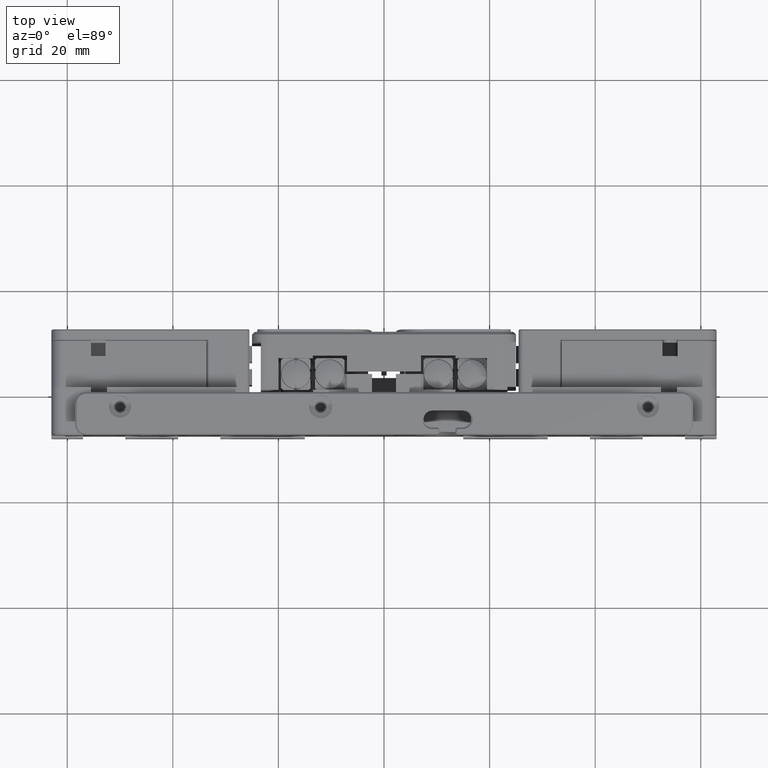
[diagram: clean part render]
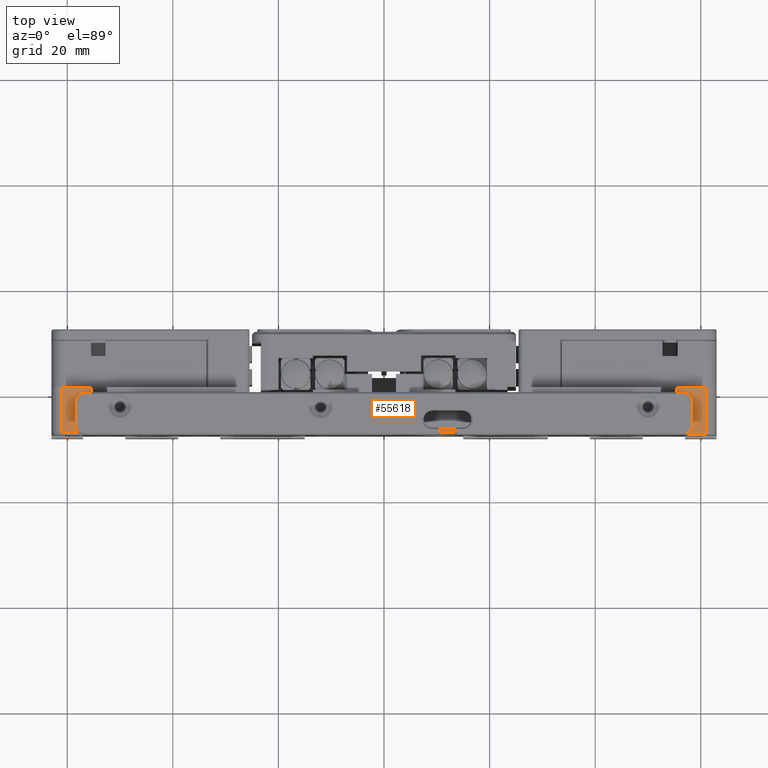
[diagram: same view with one face highlighted and labeled with its STEP entity id]
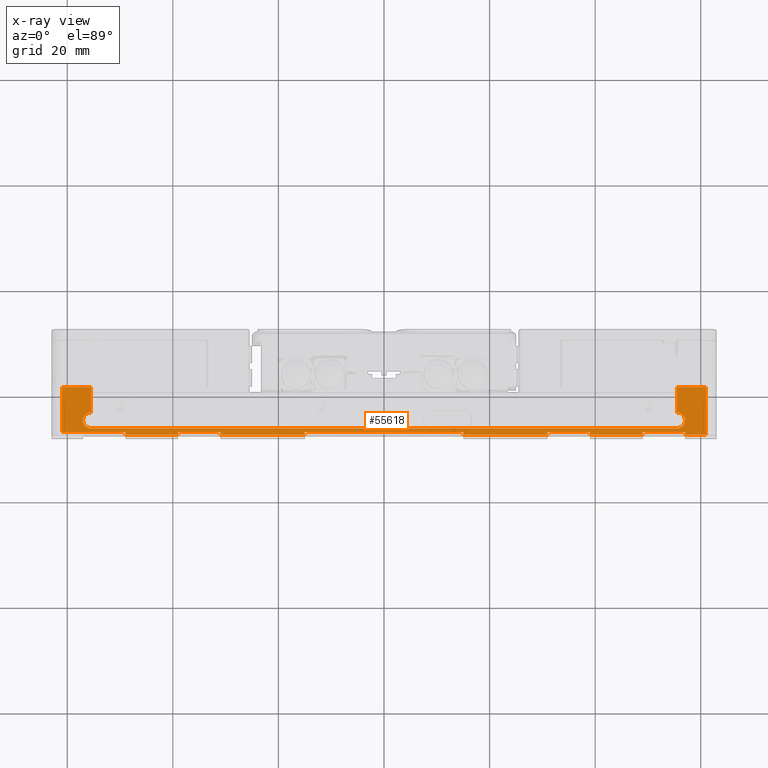
[diagram: x-ray of the same camera — body ghosted, the highlighted face saturated]
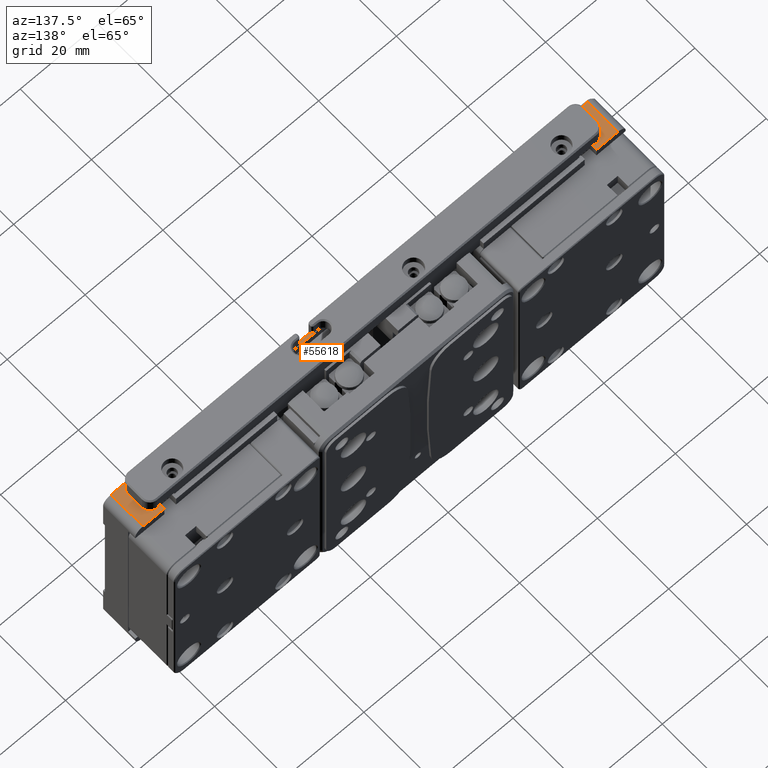
[diagram: same view with one face highlighted and labeled with its STEP entity id]
A machine part, top view. The second image highlights one B-rep face of the part: STEP entity #55618.
The next image is the same camera in x-ray: the body ghosted, the highlighted face saturated — about 0% of this face is hidden behind the body in this view.
A second angle (auxiliary view) of the same face is appended — the face is thin or edge-on in the first view.
In plain terms, the highlighted planar face has unit normal (0, 0, 1).
Its self-contained STEP definition (entity closure, byte-faithful):
#97 = DIRECTION ( 'NONE',  ( -1.000000000000000000, -0.000000000000000000, 0.000000000000000000 ) ) ;
#135 = VECTOR ( 'NONE', #23021, 1000.000000000000000 ) ;
#676 = EDGE_CURVE ( 'NONE', #7983, #10965, #2524, .T. ) ;
#936 = CARTESIAN_POINT ( 'NONE',  ( 0.000000000000000000, 1.000000000000000000, 25.00000000000000000 ) ) ;
#1038 = ORIENTED_EDGE ( 'NONE', *, *, #2643, .T. ) ;
#1106 = VERTEX_POINT ( 'NONE', #53484 ) ;
#1353 = VECTOR ( 'NONE', #18919, 1000.000000000000000 ) ;
#1513 = ORIENTED_EDGE ( 'NONE', *, *, #2705, .F. ) ;
#1542 = CARTESIAN_POINT ( 'NONE',  ( -49.00000000000000711, -8.000000000000000000, 25.00000000000000355 ) ) ;
#1629 = CARTESIAN_POINT ( 'NONE',  ( 15.00000000000000000, -7.500000000000000000, 25.00000000000000355 ) ) ;
#1963 = VERTEX_POINT ( 'NONE', #1629 ) ;
#2507 = LINE ( 'NONE', #37078, #50108 ) ;
#2524 = LINE ( 'NONE', #3373, #33540 ) ;
#2527 = DIRECTION ( 'NONE',  ( -0.000000000000000000, 1.000000000000000000, 0.000000000000000000 ) ) ;
#2608 = LINE ( 'NONE', #6305, #135 ) ;
#2643 = EDGE_CURVE ( 'NONE', #43916, #24826, #2608, .T. ) ;
#2680 = ORIENTED_EDGE ( 'NONE', *, *, #6447, .T. ) ;
#2705 = EDGE_CURVE ( 'NONE', #16220, #47283, #37764, .T. ) ;
#2929 = LINE ( 'NONE', #28745, #15010 ) ;
#3373 = CARTESIAN_POINT ( 'NONE',  ( 0.000000000000000000, -8.000000000000000000, 25.00000000000000000 ) ) ;
#3431 = EDGE_CURVE ( 'NONE', #41920, #39021, #4377, .T. ) ;
#3473 = CARTESIAN_POINT ( 'NONE',  ( 0.000000000000000000, -8.000000000000000000, 25.00000000000000000 ) ) ;
#3650 = LINE ( 'NONE', #24609, #49707 ) ;
#4323 = CARTESIAN_POINT ( 'NONE',  ( -55.50000000000000000, -5.299999999999999822, 25.00000000000000000 ) ) ;
#4377 = LINE ( 'NONE', #8056, #30977 ) ;
#5213 = CARTESIAN_POINT ( 'NONE',  ( 49.00000000000000711, -8.000000000000000000, 25.00000000000000355 ) ) ;
#5227 = VERTEX_POINT ( 'NONE', #17012 ) ;
#5346 = VERTEX_POINT ( 'NONE', #14139 ) ;
#5906 = CARTESIAN_POINT ( 'NONE',  ( 61.00000000000000000, -8.000000000000000000, 25.00000000000000000 ) ) ;
#5928 = LINE ( 'NONE', #30585, #15062 ) ;
#5948 = DIRECTION ( 'NONE',  ( -1.000000000000000000, -0.000000000000000000, 0.000000000000000000 ) ) ;
#6205 = DIRECTION ( 'NONE',  ( -0.000000000000000000, 1.000000000000000000, 0.000000000000000000 ) ) ;
#6305 = CARTESIAN_POINT ( 'NONE',  ( 55.50000000000000000, 0.000000000000000000, 25.00000000000000000 ) ) ;
#6447 = EDGE_CURVE ( 'NONE', #5346, #47283, #45885, .T. ) ;
#7221 = DIRECTION ( 'NONE',  ( -1.000000000000000000, -0.000000000000000000, -0.000000000000000000 ) ) ;
#7370 = CARTESIAN_POINT ( 'NONE',  ( 57.00000000000000000, -7.500000000000000000, 25.00000000000000355 ) ) ;
#7496 = CARTESIAN_POINT ( 'NONE',  ( 0.000000000000000000, -7.500000000000000000, 25.00000000000000000 ) ) ;
#7983 = VERTEX_POINT ( 'NONE', #12316 ) ;
#8056 = CARTESIAN_POINT ( 'NONE',  ( 0.000000000000000000, -8.000000000000000000, 25.00000000000000000 ) ) ;
#8243 = CARTESIAN_POINT ( 'NONE',  ( 61.00000000000000000, 0.000000000000000000, 25.00000000000000000 ) ) ;
#8421 = VERTEX_POINT ( 'NONE', #43157 ) ;
#8635 = CARTESIAN_POINT ( 'NONE',  ( -61.00000000153499968, 1.000000000000000444, 25.00000000000000000 ) ) ;
#9011 = CARTESIAN_POINT ( 'NONE',  ( -55.50000000000000000, -6.800000000000000711, 25.00000000000000000 ) ) ;
#9286 = VERTEX_POINT ( 'NONE', #13635 ) ;
#9737 = EDGE_CURVE ( 'NONE', #36695, #43916, #35402, .T. ) ;
#10353 = ORIENTED_EDGE ( 'NONE', *, *, #12521, .T. ) ;
#10965 = VERTEX_POINT ( 'NONE', #5213 ) ;
#11293 = CARTESIAN_POINT ( 'NONE',  ( 31.00000000000000000, 0.000000000000000000, 25.00000000000000000 ) ) ;
#11676 = LINE ( 'NONE', #3473, #46667 ) ;
#11715 = CARTESIAN_POINT ( 'NONE',  ( 61.00000000000000000, 1.000000000000000444, 25.00000000000000000 ) ) ;
#11932 = ORIENTED_EDGE ( 'NONE', *, *, #27238, .T. ) ;
#11959 = ORIENTED_EDGE ( 'NONE', *, *, #33734, .T. ) ;
#12067 = CARTESIAN_POINT ( 'NONE',  ( 55.50000000000000000, 1.000000000000000222, 25.00000000000000355 ) ) ;
#12084 = CARTESIAN_POINT ( 'NONE',  ( -31.00000000000000000, -7.500000000000000000, 25.00000000000000355 ) ) ;
#12227 = VECTOR ( 'NONE', #14562, 1000.000000000000000 ) ;
#12231 = VECTOR ( 'NONE', #40571, 1000.000000000000000 ) ;
#12316 = CARTESIAN_POINT ( 'NONE',  ( 39.00000000000000000, -8.000000000000000000, 25.00000000000000355 ) ) ;
#12318 = LINE ( 'NONE', #13902, #35845 ) ;
#12521 = EDGE_CURVE ( 'NONE', #28138, #35422, #36543, .T. ) ;
#12582 = DIRECTION ( 'NONE',  ( 1.000000000000000000, 0.000000000000000000, -0.000000000000000000 ) ) ;
#12768 = CARTESIAN_POINT ( 'NONE',  ( 55.50000000000000000, -5.299999999999999822, 25.00000000000000000 ) ) ;
#13363 = CARTESIAN_POINT ( 'NONE',  ( 57.00000000000000000, 0.000000000000000000, 25.00000000000000000 ) ) ;
#13598 = VECTOR ( 'NONE', #7221, 1000.000000000000000 ) ;
#13635 = CARTESIAN_POINT ( 'NONE',  ( -39.00000000000000000, -7.500000000000000000, 25.00000000000000355 ) ) ;
#13672 = ORIENTED_EDGE ( 'NONE', *, *, #29730, .T. ) ;
#13902 = CARTESIAN_POINT ( 'NONE',  ( -61.00000000306999937, 0.000000000000000000, 25.00000000000000000 ) ) ;
#14139 = CARTESIAN_POINT ( 'NONE',  ( 31.00000000000000000, -8.000000000000000000, 25.00000000000000355 ) ) ;
#14562 = DIRECTION ( 'NONE',  ( 1.000000000000000000, 0.000000000000000000, -0.000000000000000000 ) ) ;
#15010 = VECTOR ( 'NONE', #50281, 1000.000000000000000 ) ;
#15062 = VECTOR ( 'NONE', #17829, 1000.000000000000000 ) ;
#15315 = EDGE_CURVE ( 'NONE', #52450, #5227, #2929, .T. ) ;
#15513 = CARTESIAN_POINT ( 'NONE',  ( -39.00000000000000000, 0.000000000000000000, 25.00000000000000000 ) ) ;
#16220 = VERTEX_POINT ( 'NONE', #32768 ) ;
#16658 = VECTOR ( 'NONE', #29046, 1000.000000000000000 ) ;
#16943 = AXIS2_PLACEMENT_3D ( 'NONE', #30790, #34479, #29956 ) ;
#17012 = CARTESIAN_POINT ( 'NONE',  ( -39.00000000000000000, -8.000000000000000000, 25.00000000000000355 ) ) ;
#17070 = DIRECTION ( 'NONE',  ( -0.000000000000000000, 1.000000000000000000, 0.000000000000000000 ) ) ;
#17340 = ORIENTED_EDGE ( 'NONE', *, *, #44716, .T. ) ;
#17649 = EDGE_CURVE ( 'NONE', #39021, #8421, #50045, .T. ) ;
#17829 = DIRECTION ( 'NONE',  ( 0.000000000000000000, -1.000000000000000000, -0.000000000000000000 ) ) ;
#18097 = CARTESIAN_POINT ( 'NONE',  ( 0.000000000000000000, -7.500000000000000000, 25.00000000000000000 ) ) ;
#18520 = VERTEX_POINT ( 'NONE', #7370 ) ;
#18919 = DIRECTION ( 'NONE',  ( -1.000000000000000000, -0.000000000000000000, -0.000000000000000000 ) ) ;
#19933 = CARTESIAN_POINT ( 'NONE',  ( -55.50000000000000000, -3.800000000000000266, 25.00000000000000000 ) ) ;
#20017 = CARTESIAN_POINT ( 'NONE',  ( 0.000000000000000000, -7.500000000000000000, 25.00000000000000000 ) ) ;
#20064 = VECTOR ( 'NONE', #46230, 1000.000000000000000 ) ;
#20159 = DIRECTION ( 'NONE',  ( 1.000000000000000000, 0.000000000000000000, 0.000000000000000000 ) ) ;
#20169 = DIRECTION ( 'NONE',  ( 1.000000000000000000, 0.000000000000000000, -0.000000000000000000 ) ) ;
#20286 = VECTOR ( 'NONE', #31144, 1000.000000000000000 ) ;
#20463 = CARTESIAN_POINT ( 'NONE',  ( 57.00000000000000000, -8.000000000000000000, 25.00000000000000355 ) ) ;
#20604 = ORIENTED_EDGE ( 'NONE', *, *, #43362, .T. ) ;
#20716 = EDGE_CURVE ( 'NONE', #35422, #20982, #52971, .T. ) ;
#20802 = LINE ( 'NONE', #7496, #13598 ) ;
#20982 = VERTEX_POINT ( 'NONE', #35813 ) ;
#21095 = VECTOR ( 'NONE', #45977, 1000.000000000000000 ) ;
#21596 = VERTEX_POINT ( 'NONE', #12084 ) ;
#21722 = PLANE ( 'NONE',  #16943 ) ;
#22112 = LINE ( 'NONE', #8243, #22649 ) ;
#22649 = VECTOR ( 'NONE', #30061, 1000.000000000000000 ) ;
#23021 = DIRECTION ( 'NONE',  ( 0.000000000000000000, -1.000000000000000000, -0.000000000000000000 ) ) ;
#23083 = LINE ( 'NONE', #26779, #12227 ) ;
#23194 = ORIENTED_EDGE ( 'NONE', *, *, #30874, .F. ) ;
#23868 = LINE ( 'NONE', #32650, #21095 ) ;
#24609 = CARTESIAN_POINT ( 'NONE',  ( 0.000000000000000000, -7.500000000004000356, 25.00000000000000000 ) ) ;
#24613 = VECTOR ( 'NONE', #97, 1000.000000000000000 ) ;
#24826 = VERTEX_POINT ( 'NONE', #29777 ) ;
#26465 = ORIENTED_EDGE ( 'NONE', *, *, #3431, .T. ) ;
#26779 = CARTESIAN_POINT ( 'NONE',  ( 0.000000000000000000, -8.000000000000000000, 25.00000000000000000 ) ) ;
#26850 = VECTOR ( 'NONE', #17070, 1000.000000000000000 ) ;
#27238 = EDGE_CURVE ( 'NONE', #24826, #48652, #30413, .T. ) ;
#27328 = ORIENTED_EDGE ( 'NONE', *, *, #20716, .T. ) ;
#28138 = VERTEX_POINT ( 'NONE', #9011 ) ;
#28546 = VECTOR ( 'NONE', #55132, 1000.000000000000000 ) ;
#28586 = VECTOR ( 'NONE', #37592, 1000.000000000000000 ) ;
#28614 = EDGE_CURVE ( 'NONE', #21596, #41920, #23868, .T. ) ;
#28745 = CARTESIAN_POINT ( 'NONE',  ( 0.000000000000000000, -8.000000000000000000, 25.00000000000000000 ) ) ;
#29046 = DIRECTION ( 'NONE',  ( 0.000000000000000000, -1.000000000000000000, -0.000000000000000000 ) ) ;
#29304 = ORIENTED_EDGE ( 'NONE', *, *, #46540, .T. ) ;
#29730 = EDGE_CURVE ( 'NONE', #18520, #53772, #37567, .T. ) ;
#29742 = ORIENTED_EDGE ( 'NONE', *, *, #45277, .F. ) ;
#29777 = CARTESIAN_POINT ( 'NONE',  ( 55.50000000000000000, -3.799999999999999822, 25.00000000000000000 ) ) ;
#29956 = DIRECTION ( 'NONE',  ( 1.000000000000000000, 0.000000000000000000, -0.000000000000000000 ) ) ;
#30061 = DIRECTION ( 'NONE',  ( -0.000000000000000000, 1.000000000000000000, 0.000000000000000000 ) ) ;
#30413 = CIRCLE ( 'NONE', #37677, 1.500000000000001332 ) ;
#30585 = CARTESIAN_POINT ( 'NONE',  ( -49.00000000000000000, 0.000000000000000000, 25.00000000000000000 ) ) ;
#30790 = CARTESIAN_POINT ( 'NONE',  ( 0.000000000000000000, 0.000000000000000000, 25.00000000000000000 ) ) ;
#30843 = CARTESIAN_POINT ( 'NONE',  ( -55.50000000000000000, 0.000000000000000000, 25.00000000000000000 ) ) ;
#30874 = EDGE_CURVE ( 'NONE', #1963, #8421, #45535, .T. ) ;
#30977 = VECTOR ( 'NONE', #12582, 1000.000000000000000 ) ;
#31144 = DIRECTION ( 'NONE',  ( 0.000000000000000000, -1.000000000000000000, -0.000000000000000000 ) ) ;
#31480 = LINE ( 'NONE', #48768, #12231 ) ;
#31509 = ORIENTED_EDGE ( 'NONE', *, *, #39618, .T. ) ;
#31945 = LINE ( 'NONE', #50593, #28546 ) ;
#32531 = LINE ( 'NONE', #15513, #50370 ) ;
#32621 = CARTESIAN_POINT ( 'NONE',  ( 49.00000000000000711, -7.500000000000000000, 25.00000000000000355 ) ) ;
#32650 = CARTESIAN_POINT ( 'NONE',  ( -31.00000000000000000, 0.000000000000000000, 25.00000000000000000 ) ) ;
#32768 = CARTESIAN_POINT ( 'NONE',  ( 39.00000000000000000, -7.500000000000000000, 25.00000000000000355 ) ) ;
#33243 = EDGE_LOOP ( 'NONE', ( #11959, #20604, #34395, #55714, #34055, #31509, #29742, #49100, #26465, #38228, #23194, #54352, #55688, #2680, #1513, #40701, #35890, #52431, #37716, #13672, #40526, #17340, #55920, #1038, #11932, #36115, #10353, #27328, #29304 ) ) ;
#33540 = VECTOR ( 'NONE', #37095, 1000.000000000000000 ) ;
#33734 = EDGE_CURVE ( 'NONE', #56018, #1106, #12318, .T. ) ;
#34055 = ORIENTED_EDGE ( 'NONE', *, *, #15315, .T. ) ;
#34395 = ORIENTED_EDGE ( 'NONE', *, *, #50958, .F. ) ;
#34469 = CARTESIAN_POINT ( 'NONE',  ( -56.99999999999999289, -7.500000000002000178, 25.00000000000200373 ) ) ;
#34479 = DIRECTION ( 'NONE',  ( 0.000000000000000000, 0.000000000000000000, 1.000000000000000000 ) ) ;
#34586 = CARTESIAN_POINT ( 'NONE',  ( -49.00000000000000711, -7.500000000000000000, 25.00000000000000355 ) ) ;
#34607 = DIRECTION ( 'NONE',  ( -0.000000000000000000, -0.000000000000000000, -1.000000000000000000 ) ) ;
#34804 = CARTESIAN_POINT ( 'NONE',  ( 0.000000000000000000, -7.500000000000000000, 25.00000000000000000 ) ) ;
#34984 = LINE ( 'NONE', #936, #24613 ) ;
#35402 = LINE ( 'NONE', #48145, #41246 ) ;
#35422 = VERTEX_POINT ( 'NONE', #19933 ) ;
#35813 = CARTESIAN_POINT ( 'NONE',  ( -55.50000000000000000, 1.000000000000000000, 25.00000000000000355 ) ) ;
#35845 = VECTOR ( 'NONE', #43971, 1000.000000000000000 ) ;
#35890 = ORIENTED_EDGE ( 'NONE', *, *, #676, .T. ) ;
#36115 = ORIENTED_EDGE ( 'NONE', *, *, #38093, .T. ) ;
#36543 = CIRCLE ( 'NONE', #41979, 1.500000000000001332 ) ;
#36695 = VERTEX_POINT ( 'NONE', #11715 ) ;
#36842 = EDGE_CURVE ( 'NONE', #16220, #7983, #40617, .T. ) ;
#37078 = CARTESIAN_POINT ( 'NONE',  ( 0.000000000000000000, -7.500000000000000000, 25.00000000000000000 ) ) ;
#37095 = DIRECTION ( 'NONE',  ( 1.000000000000000000, 0.000000000000000000, -0.000000000000000000 ) ) ;
#37472 = DIRECTION ( 'NONE',  ( -0.000000000000000000, -0.000000000000000000, -1.000000000000000000 ) ) ;
#37567 = LINE ( 'NONE', #13363, #16658 ) ;
#37592 = DIRECTION ( 'NONE',  ( -0.000000000000000000, 1.000000000000000000, 0.000000000000000000 ) ) ;
#37677 = AXIS2_PLACEMENT_3D ( 'NONE', #12768, #37472, #20159 ) ;
#37716 = ORIENTED_EDGE ( 'NONE', *, *, #39445, .F. ) ;
#37764 = LINE ( 'NONE', #34804, #20064 ) ;
#38093 = EDGE_CURVE ( 'NONE', #48652, #28138, #31480, .T. ) ;
#38228 = ORIENTED_EDGE ( 'NONE', *, *, #17649, .T. ) ;
#38540 = EDGE_CURVE ( 'NONE', #1963, #41758, #31945, .T. ) ;
#38621 = LINE ( 'NONE', #55909, #26850 ) ;
#39021 = VERTEX_POINT ( 'NONE', #51069 ) ;
#39445 = EDGE_CURVE ( 'NONE', #18520, #41886, #40525, .T. ) ;
#39476 = EDGE_CURVE ( 'NONE', #44692, #52450, #5928, .T. ) ;
#39618 = EDGE_CURVE ( 'NONE', #5227, #9286, #32531, .T. ) ;
#40159 = VECTOR ( 'NONE', #2527, 1000.000000000000000 ) ;
#40347 = VERTEX_POINT ( 'NONE', #5906 ) ;
#40525 = LINE ( 'NONE', #18097, #54903 ) ;
#40526 = ORIENTED_EDGE ( 'NONE', *, *, #53364, .T. ) ;
#40571 = DIRECTION ( 'NONE',  ( -1.000000000000000000, -0.000000000000000000, 0.000000000000000000 ) ) ;
#40617 = LINE ( 'NONE', #49371, #20286 ) ;
#40701 = ORIENTED_EDGE ( 'NONE', *, *, #36842, .T. ) ;
#41246 = VECTOR ( 'NONE', #5948, 1000.000000000000000 ) ;
#41565 = CARTESIAN_POINT ( 'NONE',  ( -15.00000000000000000, 0.000000000000000000, 25.00000000000000000 ) ) ;
#41758 = VERTEX_POINT ( 'NONE', #47398 ) ;
#41886 = VERTEX_POINT ( 'NONE', #32621 ) ;
#41920 = VERTEX_POINT ( 'NONE', #46209 ) ;
#41979 = AXIS2_PLACEMENT_3D ( 'NONE', #4323, #34607, #51896 ) ;
#43157 = CARTESIAN_POINT ( 'NONE',  ( -15.00000000000000000, -7.500000000000000000, 25.00000000000000355 ) ) ;
#43348 = DIRECTION ( 'NONE',  ( -0.000000000000000000, 1.000000000000000000, 0.000000000000000000 ) ) ;
#43362 = EDGE_CURVE ( 'NONE', #1106, #54544, #3650, .T. ) ;
#43916 = VERTEX_POINT ( 'NONE', #12067 ) ;
#43971 = DIRECTION ( 'NONE',  ( 0.000000000000000000, -1.000000000000000000, -0.000000000000000000 ) ) ;
#44692 = VERTEX_POINT ( 'NONE', #34586 ) ;
#44716 = EDGE_CURVE ( 'NONE', #40347, #36695, #22112, .T. ) ;
#45277 = EDGE_CURVE ( 'NONE', #21596, #9286, #20802, .T. ) ;
#45535 = LINE ( 'NONE', #20017, #1353 ) ;
#45885 = LINE ( 'NONE', #11293, #40159 ) ;
#45977 = DIRECTION ( 'NONE',  ( 0.000000000000000000, -1.000000000000000000, -0.000000000000000000 ) ) ;
#46209 = CARTESIAN_POINT ( 'NONE',  ( -31.00000000000000000, -8.000000000000000000, 25.00000000000000355 ) ) ;
#46230 = DIRECTION ( 'NONE',  ( -1.000000000000000000, -0.000000000000000000, -0.000000000000000000 ) ) ;
#46540 = EDGE_CURVE ( 'NONE', #20982, #56018, #34984, .T. ) ;
#46583 = CARTESIAN_POINT ( 'NONE',  ( 55.50000000000000000, -6.799999999999999822, 25.00000000000000000 ) ) ;
#46667 = VECTOR ( 'NONE', #20169, 1000.000000000000000 ) ;
#46730 = DIRECTION ( 'NONE',  ( 1.000000000000000000, 0.000000000000000000, -0.000000000000000000 ) ) ;
#47283 = VERTEX_POINT ( 'NONE', #53769 ) ;
#47398 = CARTESIAN_POINT ( 'NONE',  ( 15.00000000000000000, -8.000000000000000000, 25.00000000000000355 ) ) ;
#48145 = CARTESIAN_POINT ( 'NONE',  ( 0.000000000000000000, 1.000000000000000000, 25.00000000000000000 ) ) ;
#48652 = VERTEX_POINT ( 'NONE', #46583 ) ;
#48768 = CARTESIAN_POINT ( 'NONE',  ( 0.000000000000000000, -6.799999999999999822, 25.00000000000000000 ) ) ;
#49100 = ORIENTED_EDGE ( 'NONE', *, *, #28614, .T. ) ;
#49148 = VECTOR ( 'NONE', #43348, 1000.000000000000000 ) ;
#49371 = CARTESIAN_POINT ( 'NONE',  ( 39.00000000000000000, 0.000000000000000000, 25.00000000000000000 ) ) ;
#49707 = VECTOR ( 'NONE', #46730, 1000.000000000000000 ) ;
#50045 = LINE ( 'NONE', #41565, #28586 ) ;
#50108 = VECTOR ( 'NONE', #50402, 1000.000000000000000 ) ;
#50281 = DIRECTION ( 'NONE',  ( 1.000000000000000000, 0.000000000000000000, -0.000000000000000000 ) ) ;
#50370 = VECTOR ( 'NONE', #6205, 1000.000000000000000 ) ;
#50402 = DIRECTION ( 'NONE',  ( -1.000000000000000000, -0.000000000000000000, -0.000000000000000000 ) ) ;
#50593 = CARTESIAN_POINT ( 'NONE',  ( 15.00000000000000000, 0.000000000000000000, 25.00000000000000000 ) ) ;
#50958 = EDGE_CURVE ( 'NONE', #44692, #54544, #2507, .T. ) ;
#51069 = CARTESIAN_POINT ( 'NONE',  ( -15.00000000000000000, -8.000000000000000000, 25.00000000000000355 ) ) ;
#51505 = FACE_OUTER_BOUND ( 'NONE', #33243, .T. ) ;
#51896 = DIRECTION ( 'NONE',  ( 1.000000000000000000, 0.000000000000000000, 0.000000000000000000 ) ) ;
#52431 = ORIENTED_EDGE ( 'NONE', *, *, #54964, .T. ) ;
#52450 = VERTEX_POINT ( 'NONE', #1542 ) ;
#52674 = DIRECTION ( 'NONE',  ( -1.000000000000000000, -0.000000000000000000, -0.000000000000000000 ) ) ;
#52971 = LINE ( 'NONE', #30843, #49148 ) ;
#53364 = EDGE_CURVE ( 'NONE', #53772, #40347, #23083, .T. ) ;
#53484 = CARTESIAN_POINT ( 'NONE',  ( -61.00000053539667988, -7.500009367460443777, 25.00002497446382677 ) ) ;
#53769 = CARTESIAN_POINT ( 'NONE',  ( 31.00000000000000000, -7.500000000000000000, 25.00000000000000355 ) ) ;
#53772 = VERTEX_POINT ( 'NONE', #20463 ) ;
#53793 = EDGE_CURVE ( 'NONE', #41758, #5346, #11676, .T. ) ;
#54352 = ORIENTED_EDGE ( 'NONE', *, *, #38540, .T. ) ;
#54544 = VERTEX_POINT ( 'NONE', #34469 ) ;
#54903 = VECTOR ( 'NONE', #52674, 1000.000000000000000 ) ;
#54964 = EDGE_CURVE ( 'NONE', #10965, #41886, #38621, .T. ) ;
#55132 = DIRECTION ( 'NONE',  ( 0.000000000000000000, -1.000000000000000000, -0.000000000000000000 ) ) ;
#55618 = ADVANCED_FACE ( 'NONE', ( #51505 ), #21722, .T. ) ;
#55688 = ORIENTED_EDGE ( 'NONE', *, *, #53793, .T. ) ;
#55714 = ORIENTED_EDGE ( 'NONE', *, *, #39476, .T. ) ;
#55909 = CARTESIAN_POINT ( 'NONE',  ( 49.00000000000000000, 0.000000000000000000, 25.00000000000000000 ) ) ;
#55920 = ORIENTED_EDGE ( 'NONE', *, *, #9737, .T. ) ;
#56018 = VERTEX_POINT ( 'NONE', #8635 ) ;